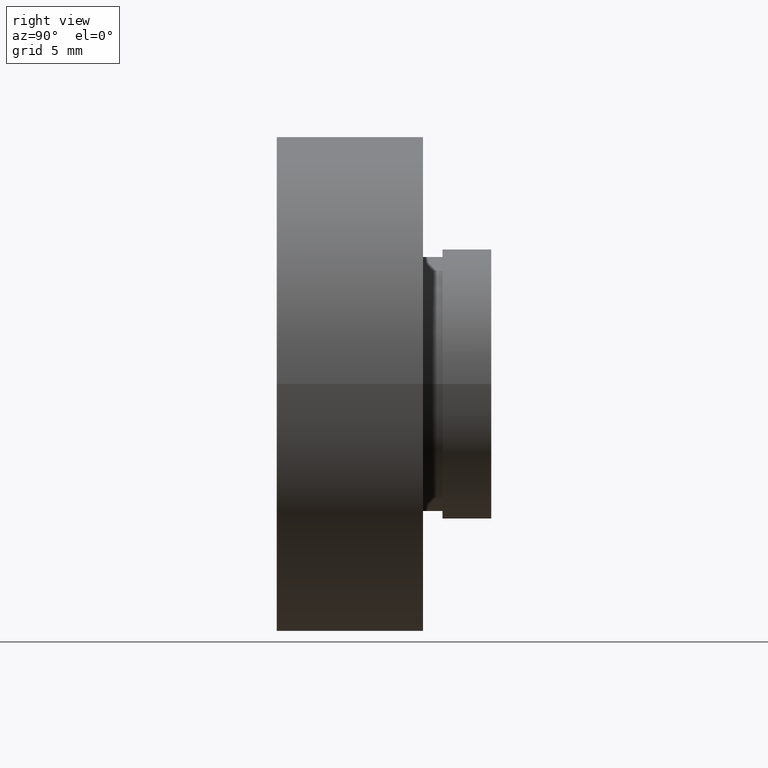
[diagram: clean part render]
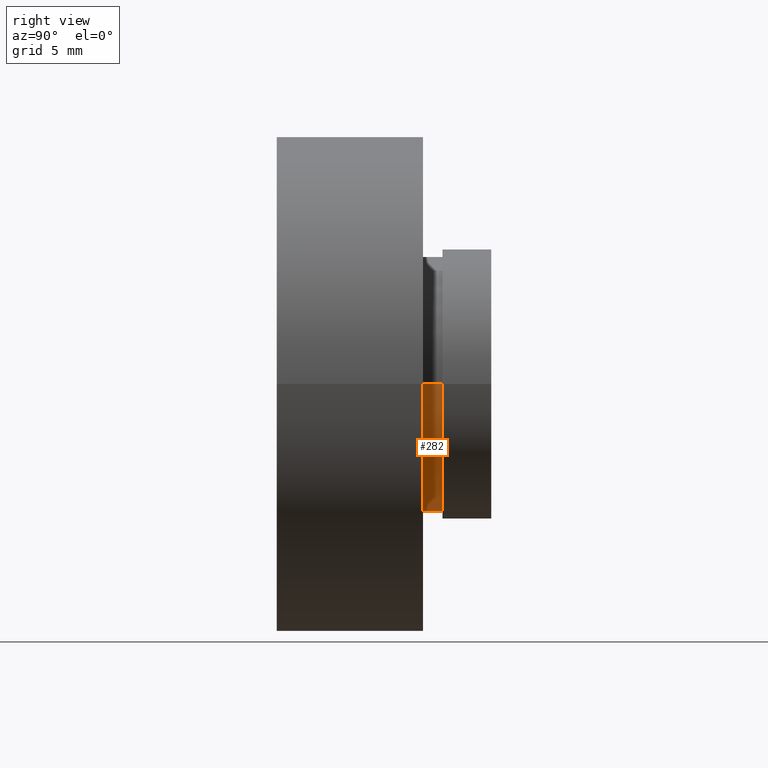
[diagram: same view with one face highlighted and labeled with its STEP entity id]
A machine part, right view. The second image highlights one B-rep face of the part: STEP entity #282.
In plain terms, the highlighted cylindrical surface (partial cylindrical patch) has radius 6.55 mm, axis along (-0, 1, -0).
Its self-contained STEP definition (entity closure, byte-faithful):
#4 = DIRECTION ( 'NONE',  ( -1.224646799147351000E-016, 1.000000000000000000, -0.0000000000000000000 ) ) ;
#62 = DIRECTION ( 'NONE',  ( -1.000000000000000000, -1.324216393875425300E-016, 0.0000000000000000000 ) ) ;
#72 = VERTEX_POINT ( 'NONE', #259 ) ;
#91 = EDGE_CURVE ( 'NONE', #72, #237, #501, .T. ) ;
#96 = ORIENTED_EDGE ( 'NONE', *, *, #356, .T. ) ;
#113 = CARTESIAN_POINT ( 'NONE',  ( 6.549999999999998900, 16.88601823708207700, 8.021436534415162300E-016 ) ) ;
#129 = CARTESIAN_POINT ( 'NONE',  ( -6.549999999999998000, 8.500000000000000000, 0.0000000000000000000 ) ) ;
#144 = VERTEX_POINT ( 'NONE', #166 ) ;
#156 = CARTESIAN_POINT ( 'NONE',  ( 1.026991039163387500E-015, 8.500000000000000000, 0.0000000000000000000 ) ) ;
#166 = CARTESIAN_POINT ( 'NONE',  ( -6.549999999999998900, 7.499999999999999100, 0.0000000000000000000 ) ) ;
#177 = EDGE_CURVE ( 'NONE', #72, #144, #471, .T. ) ;
#186 = AXIS2_PLACEMENT_3D ( 'NONE', #447, #4, #62 ) ;
#190 = AXIS2_PLACEMENT_3D ( 'NONE', #156, #435, #349 ) ;
#237 = VERTEX_POINT ( 'NONE', #403 ) ;
#259 = CARTESIAN_POINT ( 'NONE',  ( 6.550000000000000700, 7.500000000000000900, 8.021436534415164200E-016 ) ) ;
#282 = ADVANCED_FACE ( 'NONE', ( #517 ), #298, .T. ) ;
#298 = CYLINDRICAL_SURFACE ( 'NONE', #599, 6.549999999999998900 ) ;
#305 = CIRCLE ( 'NONE', #190, 6.549999999999998900 ) ;
#349 = DIRECTION ( 'NONE',  ( -1.000000000000000000, 0.0000000000000000000, 0.0000000000000000000 ) ) ;
#356 = EDGE_CURVE ( 'NONE', #144, #426, #595, .T. ) ;
#369 = CARTESIAN_POINT ( 'NONE',  ( 0.0000000000000000000, 16.88601823708207700, 0.0000000000000000000 ) ) ;
#379 = CARTESIAN_POINT ( 'NONE',  ( -6.549999999999998900, 16.88601823708207700, 0.0000000000000000000 ) ) ;
#403 = CARTESIAN_POINT ( 'NONE',  ( 6.549999999999999800, 8.500000000000000000, 8.021436534415162300E-016 ) ) ;
#414 = DIRECTION ( 'NONE',  ( -1.224646799147351000E-016, 1.000000000000000000, -0.0000000000000000000 ) ) ;
#420 = EDGE_LOOP ( 'NONE', ( #495, #512, #96, #580 ) ) ;
#426 = VERTEX_POINT ( 'NONE', #129 ) ;
#435 = DIRECTION ( 'NONE',  ( -1.224646799147351000E-016, 1.000000000000000000, -0.0000000000000000000 ) ) ;
#440 = VECTOR ( 'NONE', #553, 1000.000000000000000 ) ;
#447 = CARTESIAN_POINT ( 'NONE',  ( 1.149455719078122500E-015, 7.500000000000000000, 0.0000000000000000000 ) ) ;
#471 = CIRCLE ( 'NONE', #186, 6.549999999999999800 ) ;
#491 = DIRECTION ( 'NONE',  ( -1.224646799147351000E-016, 1.000000000000000000, -0.0000000000000000000 ) ) ;
#495 = ORIENTED_EDGE ( 'NONE', *, *, #91, .F. ) ;
#501 = LINE ( 'NONE', #113, #610 ) ;
#503 = DIRECTION ( 'NONE',  ( -1.000000000000000000, 0.0000000000000000000, 0.0000000000000000000 ) ) ;
#505 = EDGE_CURVE ( 'NONE', #237, #426, #305, .T. ) ;
#512 = ORIENTED_EDGE ( 'NONE', *, *, #177, .T. ) ;
#517 = FACE_OUTER_BOUND ( 'NONE', #420, .T. ) ;
#553 = DIRECTION ( 'NONE',  ( -1.224646799147351000E-016, 1.000000000000000000, -0.0000000000000000000 ) ) ;
#580 = ORIENTED_EDGE ( 'NONE', *, *, #505, .F. ) ;
#595 = LINE ( 'NONE', #379, #440 ) ;
#599 = AXIS2_PLACEMENT_3D ( 'NONE', #369, #414, #503 ) ;
#610 = VECTOR ( 'NONE', #491, 1000.000000000000000 ) ;